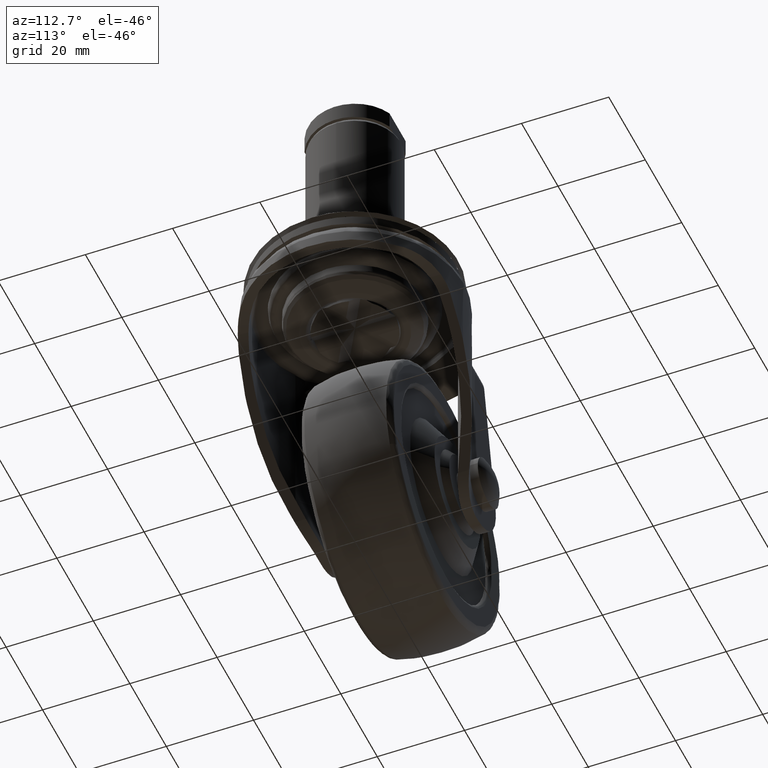
[diagram: clean part render]
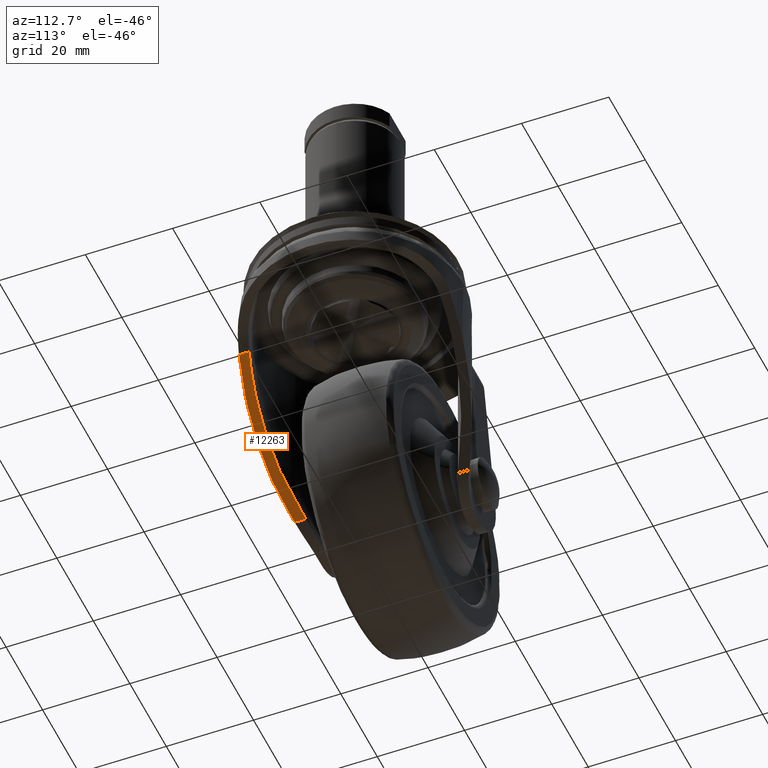
[diagram: same view with one face highlighted and labeled with its STEP entity id]
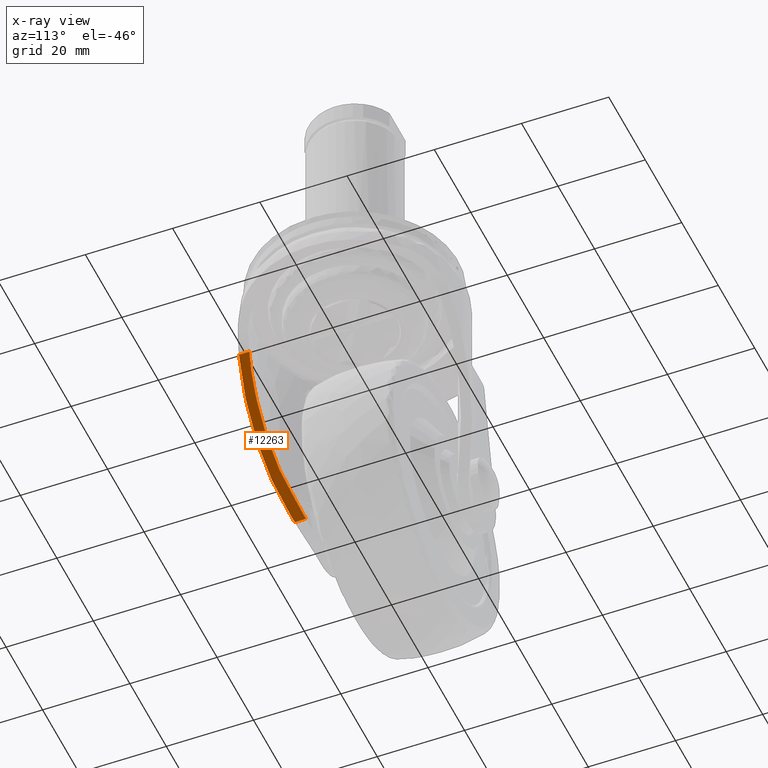
[diagram: x-ray of the same camera — body ghosted, the highlighted face saturated]
A machine part, auxiliary view. The second image highlights one B-rep face of the part: STEP entity #12263.
The next image is the same camera in x-ray: the body ghosted, the highlighted face saturated — about 0% of this face is hidden behind the body in this view.
In plain terms, the highlighted face is a freeform B-spline surface patch.
Its self-contained STEP definition (entity closure, byte-faithful):
#11934=CARTESIAN_POINT('',(-14.745581793341140,-17.426134830659251,-54.198721778351498));
#11935=VERTEX_POINT('',#11934);
#11967=CARTESIAN_POINT('',(-14.745581793341140,-20.001053857662999,-54.198721778351498));
#11968=VERTEX_POINT('',#11967);
#11969=CARTESIAN_POINT('',(-14.745581793341140,-17.426134830659251,-54.198721778351498));
#11970=CARTESIAN_POINT('',(-14.745581793341140,-20.001053857662999,-54.198721778351498));
#11971=QUASI_UNIFORM_CURVE('',1,(#11969,#11970),.UNSPECIFIED.,.F.,.U.);
#11972=EDGE_CURVE('',#11935,#11968,#11971,.T.);
#12154=CARTESIAN_POINT('',(-15.774140674879460,-25.115827077179489,-55.846775543396497));
#12155=CARTESIAN_POINT('',(6.874735677726590,-25.115827077179489,-19.556615964854700));
#12156=CARTESIAN_POINT('',(-15.774140674879460,-17.060307033194729,-55.846775543396497));
#12157=CARTESIAN_POINT('',(6.874735677726590,-17.060307033194729,-19.556615964854700));
#12158=B_SPLINE_SURFACE_WITH_KNOTS('',1,1,((#12154,#12156),(#12155,#12157)),.UNSPECIFIED.,.F.,.F.,.U.,(2,2),(2,2),(0.0,42.777883097129383),(0.0,8.055520043984764),.UNSPECIFIED.);
#12159=CARTESIAN_POINT('',(5.846178269025740,-24.169048228928499,-21.204667369981049));
#12160=VERTEX_POINT('',#12159);
#12161=CARTESIAN_POINT('',(1.059833744774488,-24.750000000000000,-28.873798671630400));
#12162=VERTEX_POINT('',#12161);
#12163=CARTESIAN_POINT('',(5.846178269025740,-24.169048228928510,-21.204667369981049));
#12164=CARTESIAN_POINT('',(5.046956278167311,-24.374183803880658,-22.485256002078689));
#12165=CARTESIAN_POINT('',(4.248570288356189,-24.518869885030970,-23.764505114681310));
#12166=CARTESIAN_POINT('',(2.653200976864219,-24.706818037493139,-26.320755853102160));
#12167=CARTESIAN_POINT('',(1.856218763067669,-24.750000000000000,-27.597755703764012));
#12168=CARTESIAN_POINT('',(1.059833744774506,-24.750000000000000,-28.873798671630411));
#12169=B_SPLINE_CURVE_WITH_KNOTS('',3,(#12163,#12164,#12165,#12166,#12167,#12168),.UNSPECIFIED.,.F.,.U.,(4,2,4),(0.0,0.500000000000000,1.0),.UNSPECIFIED.);
#12170=EDGE_CURVE('',#12160,#12162,#12169,.T.);
#12171=ORIENTED_EDGE('',*,*,#12170,.T.);
#12172=CARTESIAN_POINT('',(1.515450E-015,-24.750000000000000,-30.571963963621300));
#12173=VERTEX_POINT('',#12172);
#12174=CARTESIAN_POINT('',(1.059833744774488,-24.750000000000000,-28.873798671630400));
#12175=CARTESIAN_POINT('',(1.515450E-015,-24.750000000000000,-30.571963963621300));
#12176=QUASI_UNIFORM_CURVE('',1,(#12174,#12175),.UNSPECIFIED.,.F.,.U.);
#12177=EDGE_CURVE('',#12162,#12173,#12176,.T.);
#12178=ORIENTED_EDGE('',*,*,#12177,.T.);
#12179=CARTESIAN_POINT('',(-13.510238911783800,-20.737308035194051,-52.219339242635797));
#12180=VERTEX_POINT('',#12179);
#12181=CARTESIAN_POINT('',(-13.510238911783830,-20.737308035194008,-52.219339242635783));
#12182=CARTESIAN_POINT('',(-7.351026638198453,-24.750000000000004,-42.350470129364837));
#12183=CARTESIAN_POINT('',(-4.546351E-015,-24.750000000000000,-30.571963963621300));
#12191=(BOUNDED_CURVE()B_SPLINE_CURVE(2,(#12181,#12182,#12183),.UNSPECIFIED.,.F.,.U.)CURVE()GEOMETRIC_REPRESENTATION_ITEM()QUASI_UNIFORM_CURVE()RATIONAL_B_SPLINE_CURVE((1.0,0.958611243342420,1.0))REPRESENTATION_ITEM(''));
#12192=EDGE_CURVE('',#12180,#12173,#12191,.T.);
#12193=ORIENTED_EDGE('',*,*,#12192,.F.);
#12194=CARTESIAN_POINT('',(-14.745581793341140,-20.001053857662999,-54.198721778351498));
#12195=CARTESIAN_POINT('',(-14.113192912465520,-20.344486913561418,-53.185448843951178));
#12196=CARTESIAN_POINT('',(-13.510238911783780,-20.737308035194040,-52.219339242635662));
#12204=(BOUNDED_CURVE()B_SPLINE_CURVE(2,(#12194,#12195,#12196),.UNSPECIFIED.,.F.,.U.)CURVE()GEOMETRIC_REPRESENTATION_ITEM()QUASI_UNIFORM_CURVE()RATIONAL_B_SPLINE_CURVE((1.0,0.999201787041744,1.0))REPRESENTATION_ITEM(''));
#12205=EDGE_CURVE('',#11968,#12180,#12204,.T.);
#12206=ORIENTED_EDGE('',*,*,#12205,.F.);
#12207=ORIENTED_EDGE('',*,*,#11972,.F.);
#12208=CARTESIAN_POINT('',(-12.254741962405920,-18.810204662226500,-50.207663964181798));
#12209=VERTEX_POINT('',#12208);
#12210=CARTESIAN_POINT('',(-14.745581793341101,-17.426134830659251,-54.198721778351292));
#12211=CARTESIAN_POINT('',(-13.451470674911379,-18.030542673741742,-52.125175246989883));
#12212=CARTESIAN_POINT('',(-12.254741962405900,-18.810204662226500,-50.207663964181819));
#12220=(BOUNDED_CURVE()B_SPLINE_CURVE(2,(#12210,#12211,#12212),.UNSPECIFIED.,.F.,.U.)CURVE()GEOMETRIC_REPRESENTATION_ITEM()QUASI_UNIFORM_CURVE()RATIONAL_B_SPLINE_CURVE((1.0,0.997533925567963,1.0))REPRESENTATION_ITEM(''));
#12221=EDGE_CURVE('',#11935,#12209,#12220,.T.);
#12222=ORIENTED_EDGE('',*,*,#12221,.T.);
#12223=CARTESIAN_POINT('',(-4.123862E-015,-22.449999999999999,-30.571963963621300));
#12224=VERTEX_POINT('',#12223);
#12225=CARTESIAN_POINT('',(-12.254741962405911,-18.810204662226500,-50.207663964181862));
#12226=CARTESIAN_POINT('',(-6.667900930406255,-22.450000000000003,-41.255901879618953));
#12227=CARTESIAN_POINT('',(-4.123862E-015,-22.449999999999999,-30.571963963621300));
#12235=(BOUNDED_CURVE()B_SPLINE_CURVE(2,(#12225,#12226,#12227),.UNSPECIFIED.,.F.,.U.)CURVE()GEOMETRIC_REPRESENTATION_ITEM()QUASI_UNIFORM_CURVE()RATIONAL_B_SPLINE_CURVE((1.0,0.958611243342423,1.0))REPRESENTATION_ITEM(''));
#12236=EDGE_CURVE('',#12209,#12224,#12235,.T.);
#12237=ORIENTED_EDGE('',*,*,#12236,.T.);
#12238=CARTESIAN_POINT('',(1.059833744774488,-22.449999999999999,-28.873798671630400));
#12239=VERTEX_POINT('',#12238);
#12240=CARTESIAN_POINT('',(1.059833744774488,-22.449999999999999,-28.873798671630400));
#12241=CARTESIAN_POINT('',(-4.123862E-015,-22.449999999999999,-30.571963963621300));
#12242=QUASI_UNIFORM_CURVE('',1,(#12240,#12241),.UNSPECIFIED.,.F.,.U.);
#12243=EDGE_CURVE('',#12239,#12224,#12242,.T.);
#12244=ORIENTED_EDGE('',*,*,#12243,.F.);
#12245=CARTESIAN_POINT('',(5.846178269025740,-21.807863084040950,-21.204667369981049));
#12246=VERTEX_POINT('',#12245);
#12247=CARTESIAN_POINT('',(5.846178269025740,-21.807863084040950,-21.204667369981049));
#12248=CARTESIAN_POINT('',(5.047698020099127,-22.034998142084770,-22.484067513402572));
#12249=CARTESIAN_POINT('',(4.249641752616096,-22.194786003926691,-23.762788313884251));
#12250=CARTESIAN_POINT('',(2.654234425667134,-22.402343186680589,-26.319099964245250));
#12251=CARTESIAN_POINT('',(1.856884074488027,-22.449999999999999,-27.596689679240821));
#12252=CARTESIAN_POINT('',(1.059833744774505,-22.449999999999999,-28.873798671630411));
#12253=B_SPLINE_CURVE_WITH_KNOTS('',3,(#12247,#12248,#12249,#12250,#12251,#12252),.UNSPECIFIED.,.F.,.U.,(4,2,4),(0.0,0.500000000000000,1.0),.UNSPECIFIED.);
#12254=EDGE_CURVE('',#12246,#12239,#12253,.T.);
#12255=ORIENTED_EDGE('',*,*,#12254,.F.);
#12256=CARTESIAN_POINT('',(5.846178269025740,-21.807863084040950,-21.204667369981049));
#12257=CARTESIAN_POINT('',(5.846178269025740,-24.169048228928499,-21.204667369981049));
#12258=QUASI_UNIFORM_CURVE('',1,(#12256,#12257),.UNSPECIFIED.,.F.,.U.);
#12259=EDGE_CURVE('',#12246,#12160,#12258,.T.);
#12260=ORIENTED_EDGE('',*,*,#12259,.T.);
#12261=EDGE_LOOP('',(#12171,#12178,#12193,#12206,#12207,#12222,#12237,#12244,#12255,#12260));
#12262=FACE_OUTER_BOUND('',#12261,.T.);
#12263=ADVANCED_FACE('',(#12262),#12158,.F.);